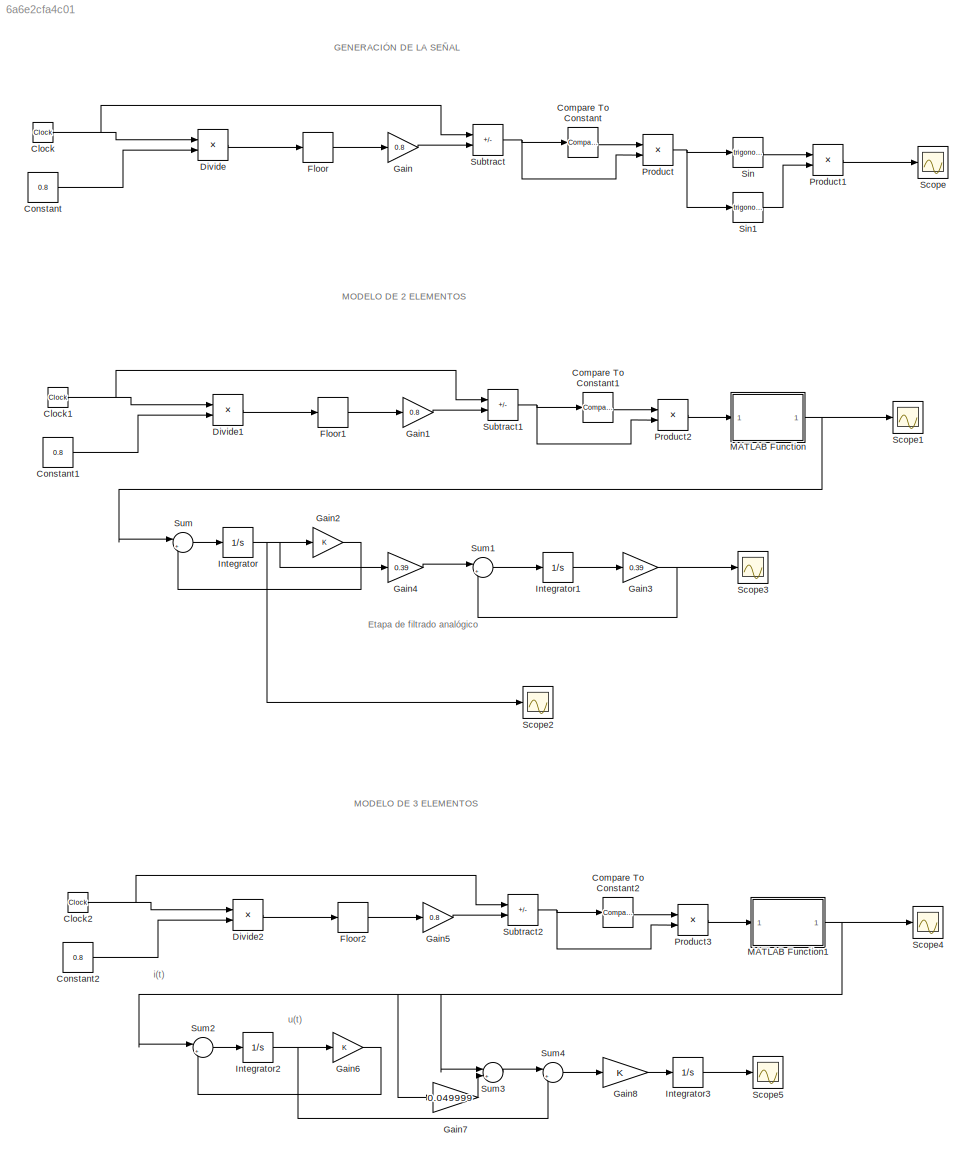
MODEL slx_6a6e2cfa4c01
KIND model
CONFIG AbsTol = auto
CONFIG EnableMultiTasking = off
CONFIG FixedStep = 0.005
CONFIG MaxStep = auto
CONFIG MinStep = auto
CONFIG RelTol = 1e-3
CONFIG SampleTimeConstraint = Unconstrained
CONFIG SolverName = FixedStepAuto
CONFIG StartTime = 0.0
CONFIG StopTime = 20
BLOCK [Clock] Clock
BLOCK [Clock] Clock1
BLOCK [Clock] Clock2
BLOCK [Reference] Compare To Constant  REF=simulink/Logic and Bit
Operations/Compare
To Constant
  Ports = [1, 1]
  SourceBlock = simulink/Logic and Bit\nOperations/Compare\nTo Constant
  SourceProductBaseCode = SL
  SourceType = Compare To Constant
BLOCK [Reference] Compare To Constant1  REF=simulink/Logic and Bit
Operations/Compare
To Constant
  Ports = [1, 1]
  SourceBlock = simulink/Logic and Bit\nOperations/Compare\nTo Constant
  SourceProductBaseCode = SL
  SourceType = Compare To Constant
BLOCK [Reference] Compare To Constant2  REF=simulink/Logic and Bit
Operations/Compare
To Constant
  Ports = [1, 1]
  SourceBlock = simulink/Logic and Bit\nOperations/Compare\nTo Constant
  SourceProductBaseCode = SL
  SourceType = Compare To Constant
BLOCK [Constant] Constant
  Value = 0.8
BLOCK [Constant] Constant1
  Value = 0.8
BLOCK [Constant] Constant2
  Value = 0.8
BLOCK [Product] Divide
  Inputs = */
  Ports = [2, 1]
BLOCK [Product] Divide1
  Inputs = */
  Ports = [2, 1]
BLOCK [Product] Divide2
  Inputs = */
  Ports = [2, 1]
BLOCK [Rounding] Floor
BLOCK [Rounding] Floor1
BLOCK [Rounding] Floor2
BLOCK [Gain] Gain
  Gain = 0.8
BLOCK [Gain] Gain1
  Gain = 0.8
BLOCK [Gain] Gain2
BLOCK [Gain] Gain3
  Gain = 0.39
BLOCK [Gain] Gain4
  Gain = 0.39
BLOCK [Gain] Gain5
  Gain = 0.8
BLOCK [Gain] Gain6
BLOCK [Gain] Gain7
  Gain = 0.049999
BLOCK [Gain] Gain8
BLOCK [Integrator] Integrator
  InitialCondition = 70
  Ports = [1, 1]
BLOCK [Integrator] Integrator1
  InitialCondition = 70
  Ports = [1, 1]
BLOCK [Integrator] Integrator2
  Ports = [1, 1]
BLOCK [Integrator] Integrator3
  Ports = [1, 1]
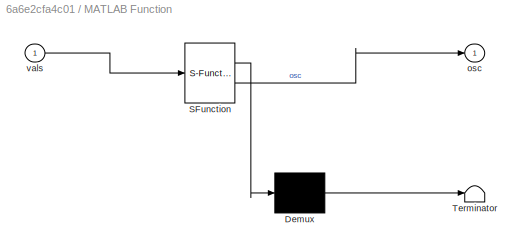
BLOCK [SubSystem] MATLAB Function
  ErrorFcn = Stateflow.Translate.translate
  PermitHierarchicalResolution = ExplicitOnly
  Ports = [1, 1]
  RequestExecContextInheritance = off
  SFBlockType = MATLAB Function
  TreatAsAtomicUnit = on
BLOCK [Demux] MATLAB Function/ Demux 
  Outputs = 1
  Ports = [1, 1]
BLOCK [S-Function] MATLAB Function/ SFunction 
  EnableBusSupport = on
  FunctionName = sf_sfun
  PortCounts = [1 2]
  Ports = [1, 2]
  SFcnIsStateOwnerBlock = off
  SFunctionDeploymentMode = off
  Tag = Stateflow S-Function 2
BLOCK [Terminator] MATLAB Function/ Terminator 
BLOCK [Outport] MATLAB Function/osc
BLOCK [Inport] MATLAB Function/vals
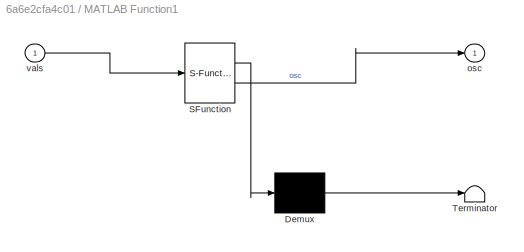
BLOCK [SubSystem] MATLAB Function1
  ErrorFcn = Stateflow.Translate.translate
  PermitHierarchicalResolution = ExplicitOnly
  Ports = [1, 1]
  RequestExecContextInheritance = off
  SFBlockType = MATLAB Function
  TreatAsAtomicUnit = on
BLOCK [Demux] MATLAB Function1/ Demux 
  Outputs = 1
  Ports = [1, 1]
BLOCK [S-Function] MATLAB Function1/ SFunction 
  EnableBusSupport = on
  FunctionName = sf_sfun
  PortCounts = [1 2]
  Ports = [1, 2]
  SFcnIsStateOwnerBlock = off
  SFunctionDeploymentMode = off
  Tag = Stateflow S-Function 1
BLOCK [Terminator] MATLAB Function1/ Terminator 
BLOCK [Outport] MATLAB Function1/osc
BLOCK [Inport] MATLAB Function1/vals
BLOCK [Product] Product
  Ports = [2, 1]
BLOCK [Product] Product1
  Ports = [2, 1]
BLOCK [Product] Product2
  Ports = [2, 1]
BLOCK [Product] Product3
  Ports = [2, 1]
BLOCK [Scope] Scope
  Floating = off
  NumInputPorts = 1
  Ports = [1]
  ScopeSpecificationString = Simulink.scopes.TimeScopeBlockCfg('CurrentConfiguration', extmgr.ConfigurationSet(extmgr.Configuration('Core','General UI',true),extmgr.Configuration('Core','Source UI',true),extmgr.Configuration('Sources','WiredSimulink',true),extmgr.Configuration('Visuals','Time Domain',true,'SerializedDisplays',{struct('MinYLimReal','-0.01092','MaxYLimReal','0.09825','YLabelReal','','MinYLimMag','0.00000','MaxY...<+1361ch>
BLOCK [Scope] Scope1
  Floating = off
  NumInputPorts = 1
  Ports = [1]
  ScopeSpecificationString = Simulink.scopes.TimeScopeBlockCfg('CurrentConfiguration', extmgr.ConfigurationSet(extmgr.Configuration('Core','General UI',true),extmgr.Configuration('Core','Source UI',true),extmgr.Configuration('Sources','WiredSimulink',true,'DataLoggingVariableName','ScopeData1'),extmgr.Configuration('Visuals','Time Domain',true,'SerializedDisplays',{struct('MinYLimReal','-62.5','MaxYLimReal','562.5','YLabelRea...<+1390ch>
BLOCK [Scope] Scope2
  Floating = off
  NumInputPorts = 1
  Ports = [1]
  ScopeSpecificationString = Simulink.scopes.TimeScopeBlockCfg('CurrentConfiguration', extmgr.ConfigurationSet(extmgr.Configuration('Core','General UI',true),extmgr.Configuration('Core','Source UI',true),extmgr.Configuration('Sources','WiredSimulink',true,'DataLoggingVariableName','ScopeData2'),extmgr.Configuration('Visuals','Time Domain',true,'SerializedDisplays',{struct('MinYLimReal','61.73869','MaxYLimReal','127.83726','YL...<+1415ch>
BLOCK [Scope] Scope3
  Floating = off
  NumInputPorts = 1
  Ports = [1]
  ScopeSpecificationString = Simulink.scopes.TimeScopeBlockCfg('CurrentConfiguration', extmgr.ConfigurationSet(extmgr.Configuration('Core','General UI',true),extmgr.Configuration('Core','Source UI',true),extmgr.Configuration('Sources','WiredSimulink',true,'DataLoggingVariableName','ScopeData3'),extmgr.Configuration('Visuals','Time Domain',true,'SerializedDisplays',{struct('MinYLimReal','26.11683','MaxYLimReal','37.84481','YLa...<+1708ch>
BLOCK [Scope] Scope4
  Floating = off
  NumInputPorts = 1
  Ports = [1]
  ScopeSpecificationString = Simulink.scopes.TimeScopeBlockCfg('CurrentConfiguration', extmgr.ConfigurationSet(extmgr.Configuration('Core','General UI',true),extmgr.Configuration('Core','Source UI',true),extmgr.Configuration('Sources','WiredSimulink',true,'DataLoggingVariableName','ScopeData1'),extmgr.Configuration('Visuals','Time Domain',true,'SerializedDisplays',{struct('MinYLimReal','-62.5','MaxYLimReal','562.5','YLabelRea...<+1391ch>
BLOCK [Scope] Scope5
  Floating = off
  NumInputPorts = 1
  Ports = [1]
  ScopeSpecificationString = Simulink.scopes.TimeScopeBlockCfg('CurrentConfiguration', extmgr.ConfigurationSet(extmgr.Configuration('Core','General UI',true),extmgr.Configuration('Core','Source UI',true),extmgr.Configuration('Sources','WiredSimulink',true,'DataLoggingVariableName','ScopeData2'),extmgr.Configuration('Visuals','Time Domain',true,'SerializedDisplays',{struct('MinYLimReal','-26.85843','MaxYLimReal','241.7259','YL...<+1410ch>
BLOCK [Trigonometry] Sin
  Ports = [1, 1]
BLOCK [Trigonometry] Sin1
  Ports = [1, 1]
BLOCK [Sum] Subtract
  IconShape = rectangular
  Inputs = +-
  Ports = [2, 1]
BLOCK [Sum] Subtract1
  IconShape = rectangular
  Inputs = +-
  Ports = [2, 1]
BLOCK [Sum] Subtract2
  IconShape = rectangular
  Inputs = +-
  Ports = [2, 1]
BLOCK [Sum] Sum
  Inputs = |+-
  Ports = [2, 1]
BLOCK [Sum] Sum1
  Inputs = |+-
  Ports = [2, 1]
BLOCK [Sum] Sum2
  Inputs = |+-
  Ports = [2, 1]
BLOCK [Sum] Sum3
  Inputs = |++
  Ports = [2, 1]
BLOCK [Sum] Sum4
  Inputs = |+-
  Ports = [2, 1]
ANNOTATION (root): GENERACIÓN DE LA SEÑAL
ANNOTATION (root): MODELO DE 2 ELEMENTOS
ANNOTATION (root): MODELO DE 3 ELEMENTOS
ANNOTATION (root): Etapa de filtrado analógico
ANNOTATION (root): i(t)
ANNOTATION (root): u(t)
NET Clock1:1 -> Divide1:1, Subtract1:1
NET Clock2:1 -> Divide2:1, Subtract2:1
NET Clock:1 -> Divide:1, Subtract:1
LINE Compare To Constant1:1 -> Product2:1
LINE Compare To Constant2:1 -> Product3:1
LINE Compare To Constant:1 -> Product:1
LINE Constant1:1 -> Divide1:2
LINE Constant2:1 -> Divide2:2
LINE Constant:1 -> Divide:2
LINE Divide1:1 -> Floor1:1
LINE Divide2:1 -> Floor2:1
LINE Divide:1 -> Floor:1
LINE Floor1:1 -> Gain1:1
LINE Floor2:1 -> Gain5:1
LINE Floor:1 -> Gain:1
LINE Gain1:1 -> Subtract1:2
LINE Gain2:1 -> Sum:2
NET Gain3:1 -> Scope3:1, Sum1:2
LINE Gain4:1 -> Sum1:1
LINE Gain5:1 -> Subtract2:2
LINE Gain6:1 -> Sum2:2
LINE Gain7:1 -> Sum3:2
LINE Gain8:1 -> Integrator3:1
LINE Gain:1 -> Subtract:2
LINE Integrator1:1 -> Gain3:1
NET Integrator2:1 -> Gain6:1, Sum4:2
LINE Integrator3:1 -> Scope5:1
NET Integrator:1 -> Gain2:1, Gain4:1, Scope2:1
NET MATLAB Function1:1 -> Gain7:1, Scope4:1, Sum2:1, Sum3:1
NET MATLAB Function:1 -> Scope1:1, Sum:1
LINE Product1:1 -> Scope:1
LINE Product2:1 -> MATLAB Function:1
LINE Product3:1 -> MATLAB Function1:1
NET Product:1 -> Sin1:1, Sin:1
LINE Sin1:1 -> Product1:2
LINE Sin:1 -> Product1:1
NET Subtract1:1 -> Compare To Constant1:1, Product2:2
NET Subtract2:1 -> Compare To Constant2:1, Product3:2
NET Subtract:1 -> Compare To Constant:1, Product:2
LINE Sum1:1 -> Integrator1:1
LINE Sum2:1 -> Integrator2:1
LINE Sum3:1 -> Sum4:1
LINE Sum4:1 -> Gain8:1
LINE Sum:1 -> Integrator:1
note: NET lines group one-source signal fan-out (src -> all destinations, sorted); 1:1 wires keep LINE
CHART MATLAB Function states=1 transitions=1
  STATE_LABEL 'eML_blk_kernel()'
  STATE_LABEL 'SCRIPT:\nfunction osc = fcn(vals)\nTs = 0.3;\nosc = 500*sin(pi*vals/Ts)^2;\n'
CHART MATLAB Function1 states=1 transitions=1
  STATE_LABEL 'eML_blk_kernel()'
  STATE_LABEL 'SCRIPT:\nfunction osc = fcn(vals)\nTs = 0.3;\nosc = 500*sin(pi*vals/Ts)^2;\n'
CHART  states=0 transitions=0
CHART  states=0 transitions=0
